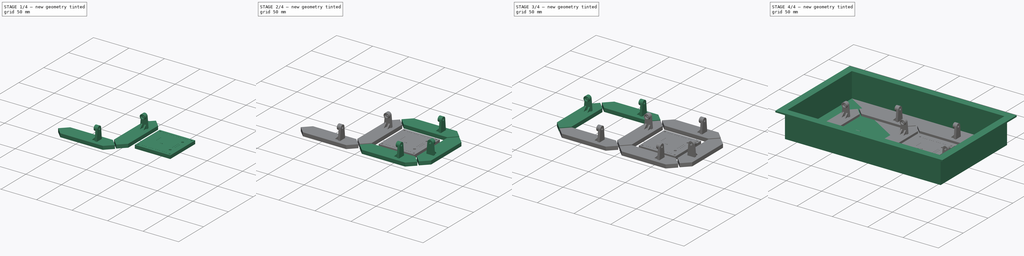
[diagram: build sequence overview — one tinted view per stage of 4, left to right]
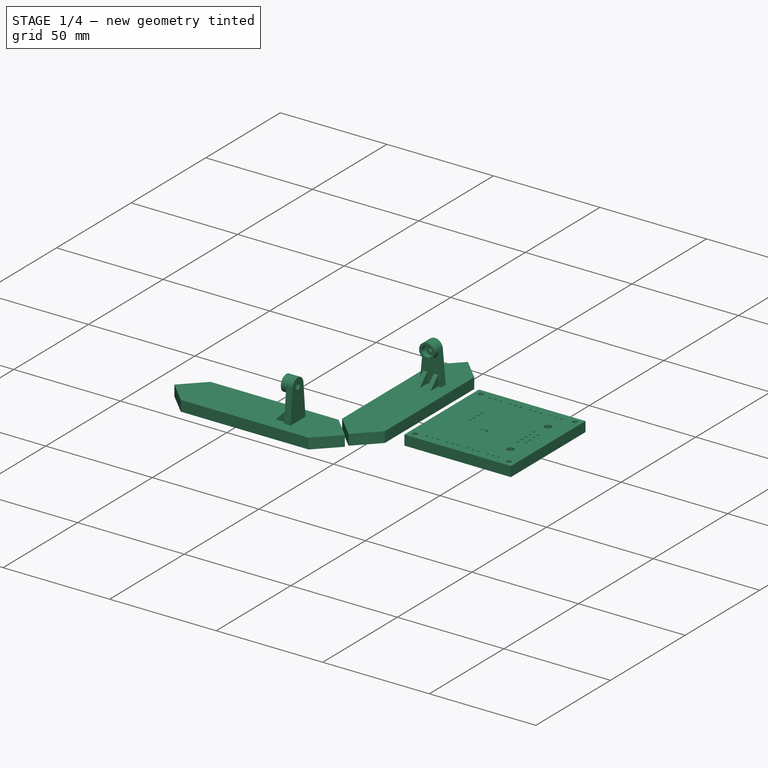
[diagram: stage 1 of 4 — iso view after this stage's code; geometry added in this stage tinted green]
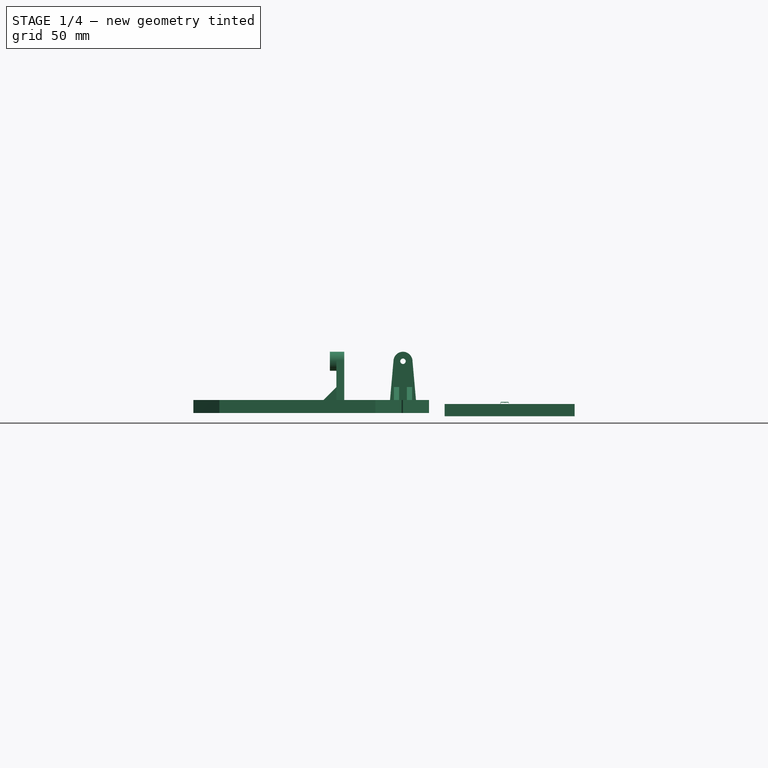
[diagram: stage 1 of 4 — front view after this stage's code; geometry added in this stage tinted green]
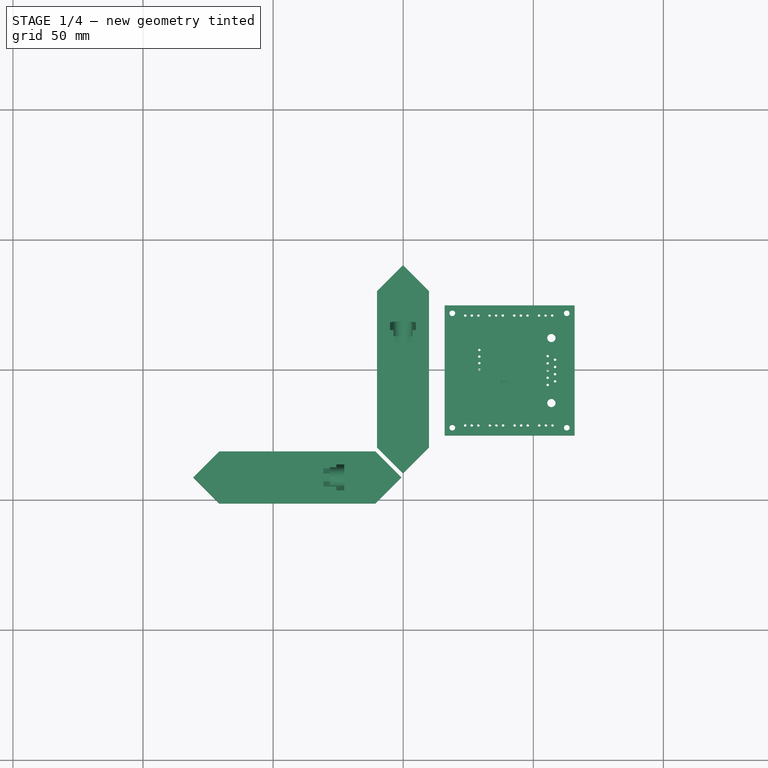
[diagram: stage 1 of 4 — top view after this stage's code; geometry added in this stage tinted green]
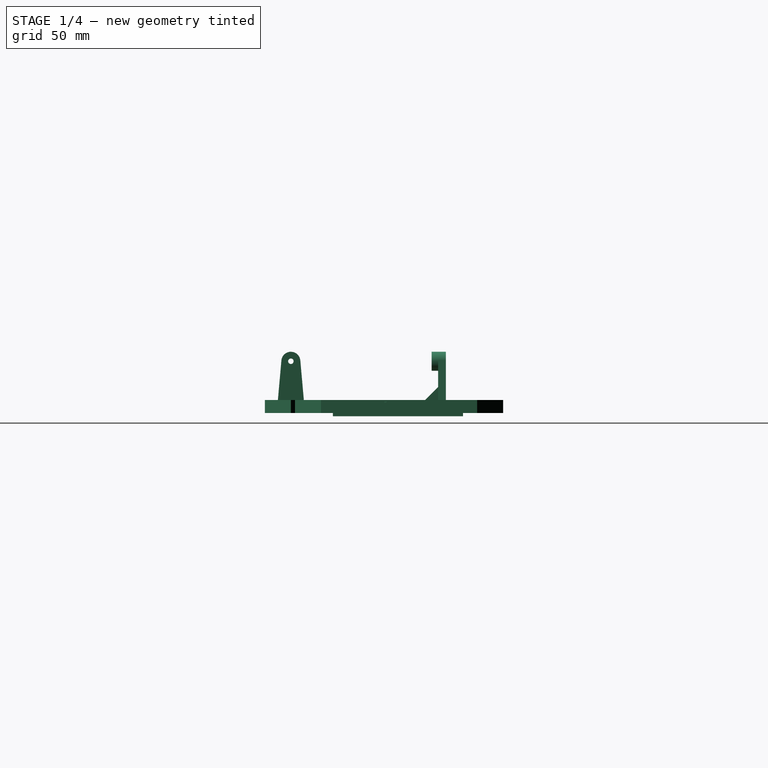
[diagram: stage 1 of 4 — right view after this stage's code; geometry added in this stage tinted green]
FCSTD DOCUMENT  (FreeCAD 0.20R29603 (Git))
Label: DisplayBox_1
License: All rights reserved
LicenseURL: http://en.wikipedia.org/wiki/All_rights_reserved
objects: Part::FeaturePython×8, Sketcher::SketchObject×4, PartDesign::Plane×3, PartDesign::Pad×2, PartDesign::Pocket×1, PartDesign::Body×1
note: 22 computed .brp shape members not serialized (recipe doc carries the construction recipe); baked Part::Feature solids carry a one-line shape summary decoded from their .brp

FEATURE [Part::FeaturePython] b_Segment_V2_001_005  label="Segment_V2_006"  # a2plus imported part (geometry in sourceFile) (typed FeaturePython)
  Placement = pos=(-40.6733,-41.3843,0) rot=(0,0,1;0rad)
  a2p_Version = 0.4.60i
  fixedPosition = false
  objectType = a2pPart
  sourceFile = ./Segment_V2.FCStd
  subassemblyImport = false
  timeLastImport = 1.67485e+09
  updateColors = true
FEATURE [Part::FeaturePython] b_Segment_V2_001_006  label="Segment_V2_007"  # a2plus imported part (geometry in sourceFile) (typed FeaturePython)
  Placement = pos=(-0.0824766,0.214149,0) rot=(0,0,1;1.5708rad)
  a2p_Version = 0.4.60i
  fixedPosition = false
  objectType = a2pPart
  sourceFile = ./Segment_V2.FCStd
  subassemblyImport = false
  timeLastImport = 1.67485e+09
  updateColors = true
FEATURE [Part::FeaturePython] b_DGT1_PCB_001_  label="DGT1_PCB_001"  # a2plus imported part (geometry in sourceFile) (typed FeaturePython)
  Placement = pos=(-49.1346,-150.221,-1.23001) rot=(0,0,1;1.5708rad)
  a2p_Version = 0.4.60i
  fixedPosition = false
  objectType = a2pPart
  sourceFile = ./../../KiCad/PLT-01/DGT-01/DGT1_PCB.FCStd
  subassemblyImport = false
  timeLastImport = 1.67491e+09
  updateColors = true
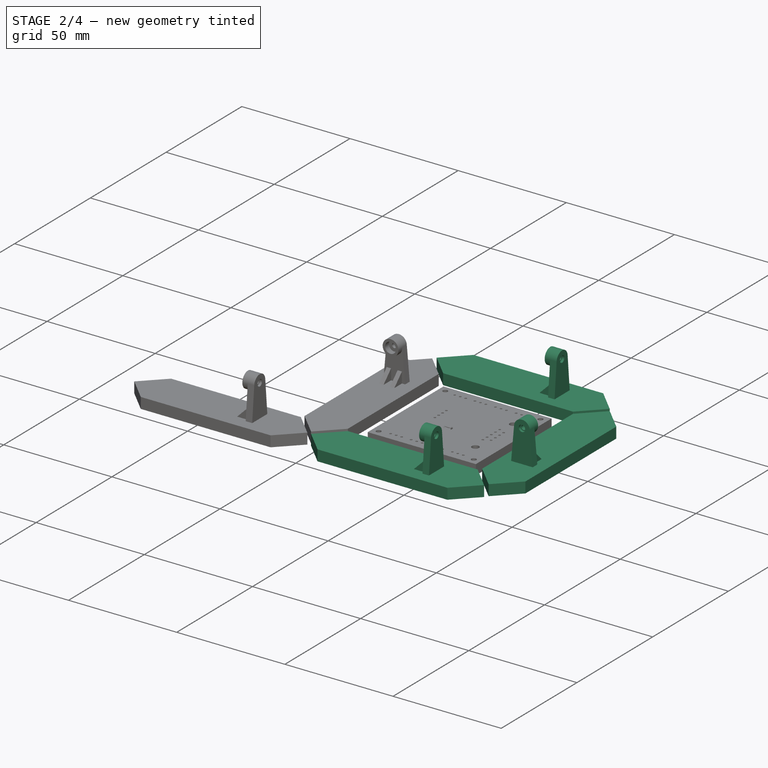
[diagram: stage 2 of 4 — iso view after this stage's code; geometry added in this stage tinted green]
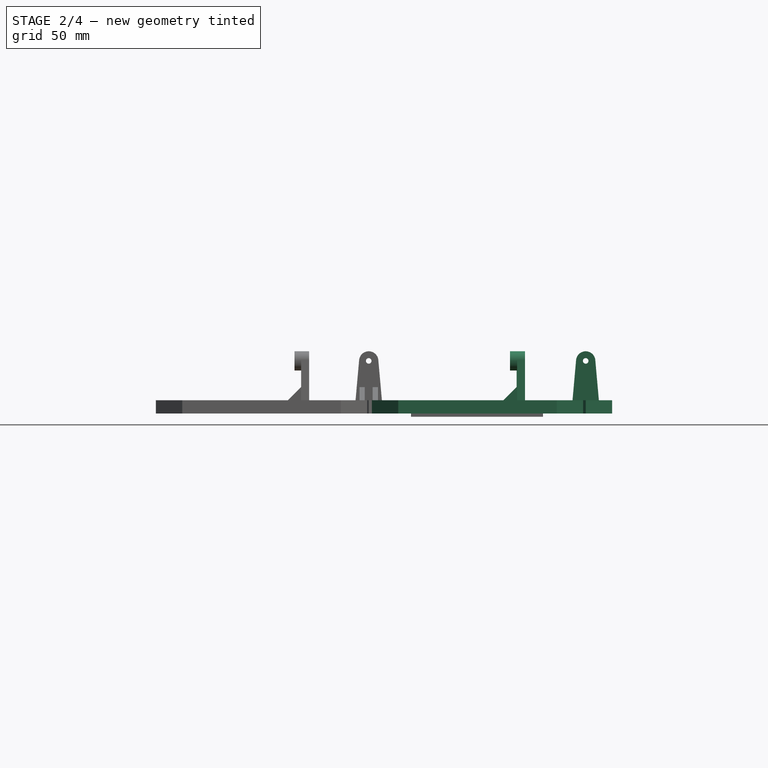
[diagram: stage 2 of 4 — front view after this stage's code; geometry added in this stage tinted green]
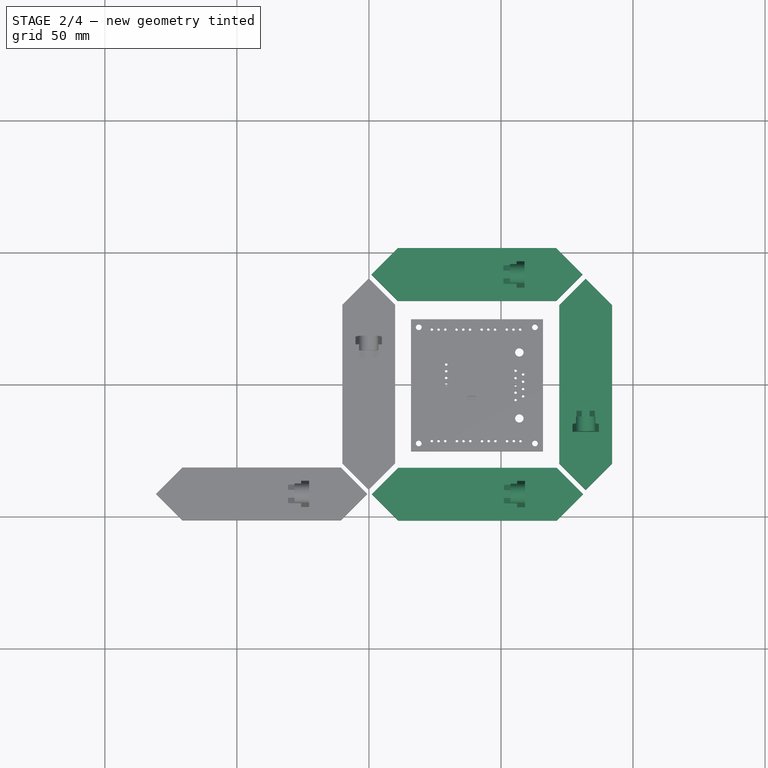
[diagram: stage 2 of 4 — top view after this stage's code; geometry added in this stage tinted green]
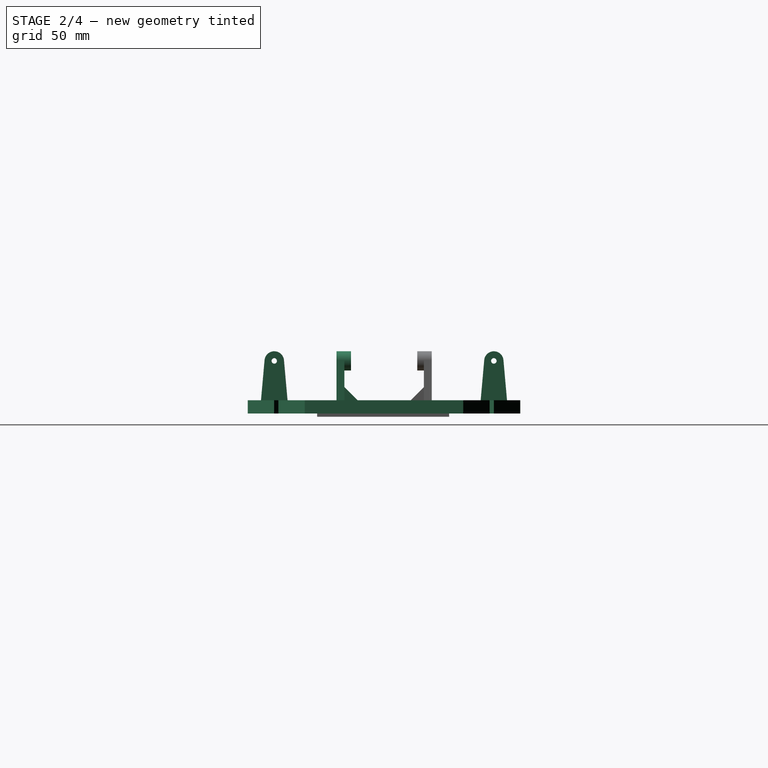
[diagram: stage 2 of 4 — right view after this stage's code; geometry added in this stage tinted green]
FEATURE [Part::FeaturePython] b_Segment_V2_001_002  label="Segment_V2_003"  # a2plus imported part (geometry in sourceFile) (typed FeaturePython)
  Placement = pos=(40.9175,41.7141,0) rot=(0,0,1;0rad)
  a2p_Version = 0.4.60i
  fixedPosition = false
  objectType = a2pPart
  sourceFile = ./Segment_V2.FCStd
  subassemblyImport = false
  timeLastImport = 1.67485e+09
  updateColors = true
FEATURE [Part::FeaturePython] b_Segment_V2_001_003  label="Segment_V2_004"  # a2plus imported part (geometry in sourceFile) (typed FeaturePython)
  Placement = pos=(82.0767,0.11572,0) rot=(0,0,-1;1.5708rad)
  a2p_Version = 0.4.60i
  fixedPosition = false
  objectType = a2pPart
  sourceFile = ./Segment_V2.FCStd
  subassemblyImport = false
  timeLastImport = 1.67485e+09
  updateColors = true
FEATURE [Part::FeaturePython] b_Segment_V2_001_004  label="Segment_V2_005"  # a2plus imported part (geometry in sourceFile) (typed FeaturePython)
  Placement = pos=(41.1031,-41.4715,0) rot=(0,0,1;0rad)
  a2p_Version = 0.4.60i
  fixedPosition = false
  objectType = a2pPart
  sourceFile = ./Segment_V2.FCStd
  subassemblyImport = false
  timeLastImport = 1.67485e+09
  updateColors = true
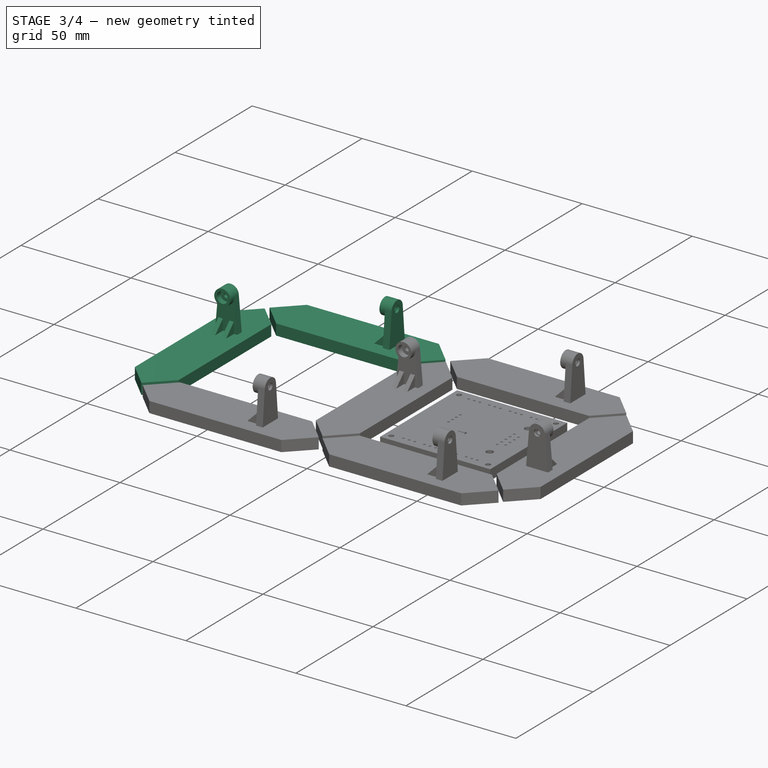
[diagram: stage 3 of 4 — iso view after this stage's code; geometry added in this stage tinted green]
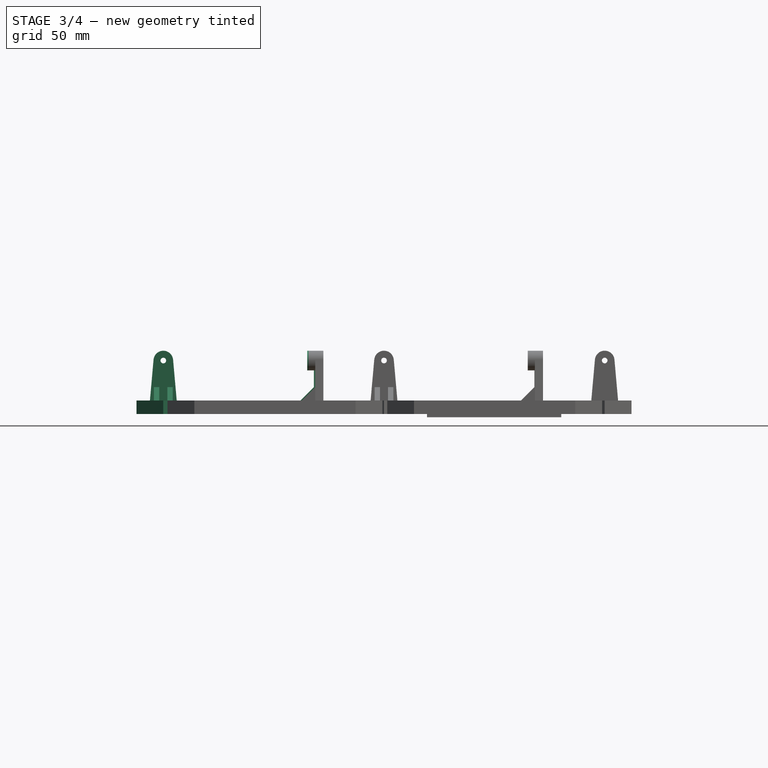
[diagram: stage 3 of 4 — front view after this stage's code; geometry added in this stage tinted green]
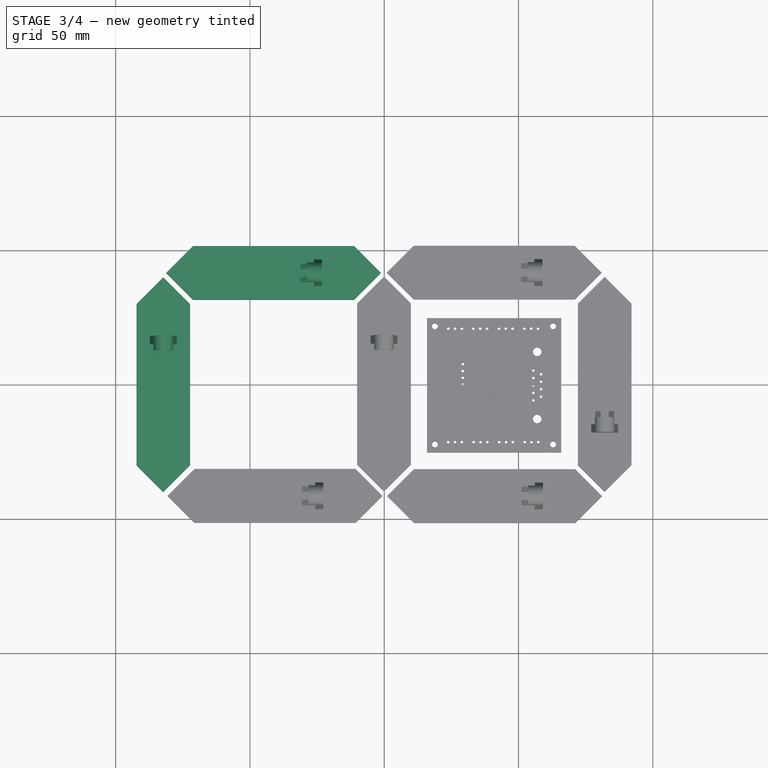
[diagram: stage 3 of 4 — top view after this stage's code; geometry added in this stage tinted green]
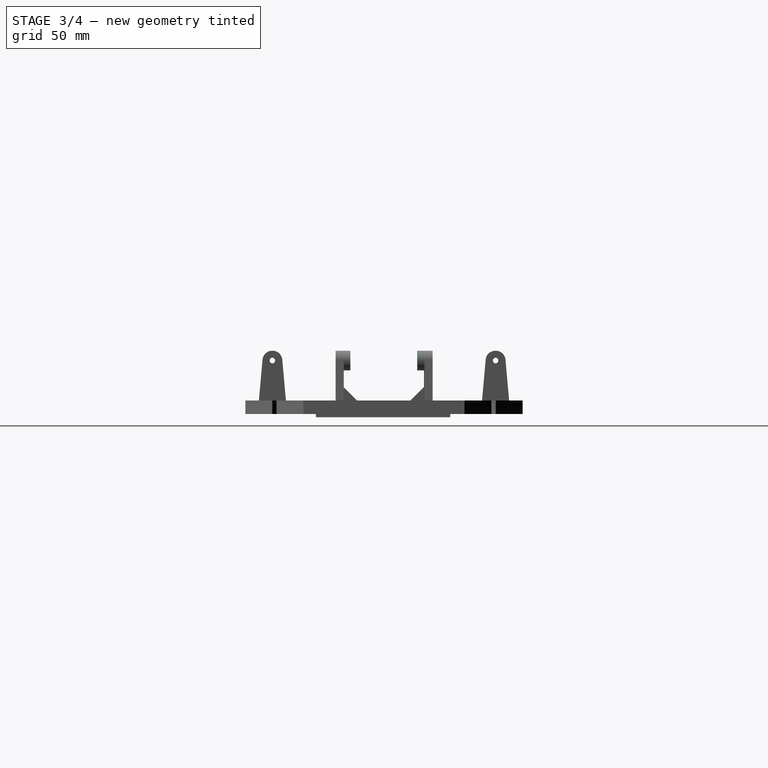
[diagram: stage 3 of 4 — right view after this stage's code; geometry added in this stage tinted green]
FEATURE [PartDesign::Plane] DatumPlane002  label="PlanoSuporteServos"
  Length = 273.63
  MapMode = 5
  Placement = pos=(0,0,2) rot=(0,0,1;0rad)
  ResizeMode = 0
  Support = -> [Pocket]
  Width = 187.63
FEATURE [Sketcher::SketchObject] Sketch003
  FullyConstrained = true
  MapMode = 5
  Placement = pos=(0,0,2) rot=(0,0,1;0rad)
  Support = -> [DatumPlane002]
FEATURE [PartDesign::Body] Body
  Group = -> [Sketch,Pad,DatumPlane,Sketch001,Pad001,DatumPlane001,Sketch002,Pocket,DatumPlane002,Sketch003]
  Origin = -> Origin
  Tip = -> Pocket
FEATURE [Part::FeaturePython] b_Segment_V2_001_  label="Segment_V2_001"  # a2plus imported part (geometry in sourceFile) (typed FeaturePython)
  Placement = pos=(-82.25,-5e-15,0) rot=(0,0,1;1.5708rad)
  a2p_Version = 0.4.60i
  fixedPosition = true
  objectType = a2pPart
  sourceFile = ./Segment_V2.FCStd
  subassemblyImport = false
  timeLastImport = 1.67485e+09
  updateColors = true
FEATURE [Part::FeaturePython] b_Segment_V2_001_001  label="Segment_V2_002"  # a2plus imported part (geometry in sourceFile) (typed FeaturePython)
  Placement = pos=(-41.1733,41.6157,0) rot=(0,0,1;0rad)
  a2p_Version = 0.4.60i
  fixedPosition = false
  objectType = a2pPart
  sourceFile = ./Segment_V2.FCStd
  subassemblyImport = false
  timeLastImport = 1.67485e+09
  updateColors = true
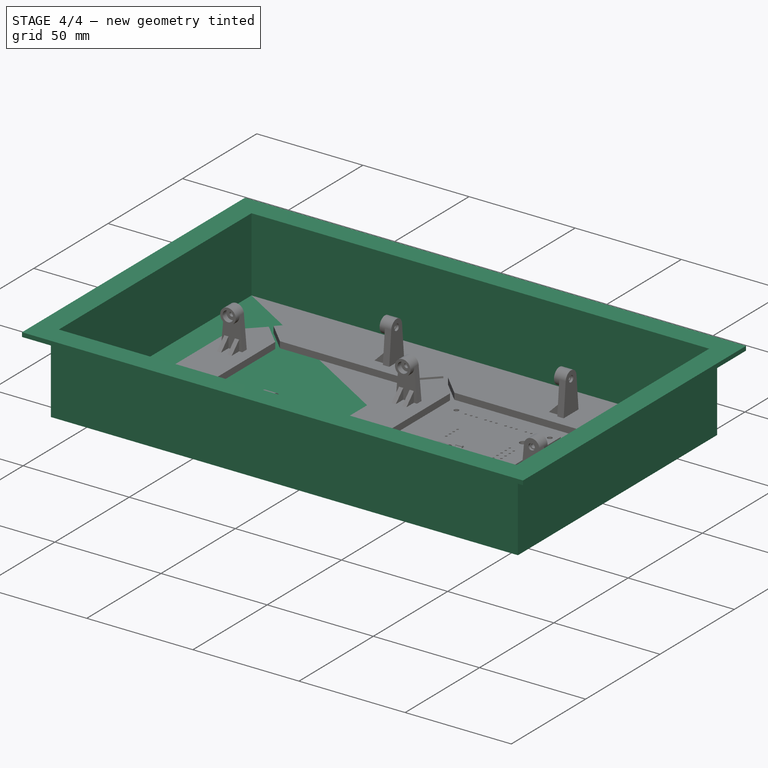
[diagram: stage 4 of 4 — iso view after this stage's code; geometry added in this stage tinted green]
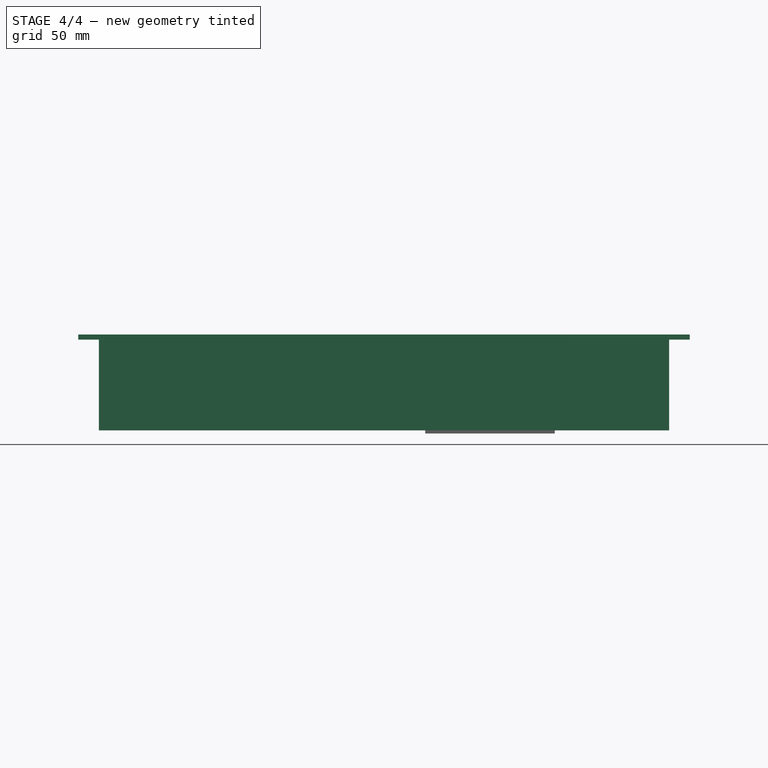
[diagram: stage 4 of 4 — front view after this stage's code; geometry added in this stage tinted green]
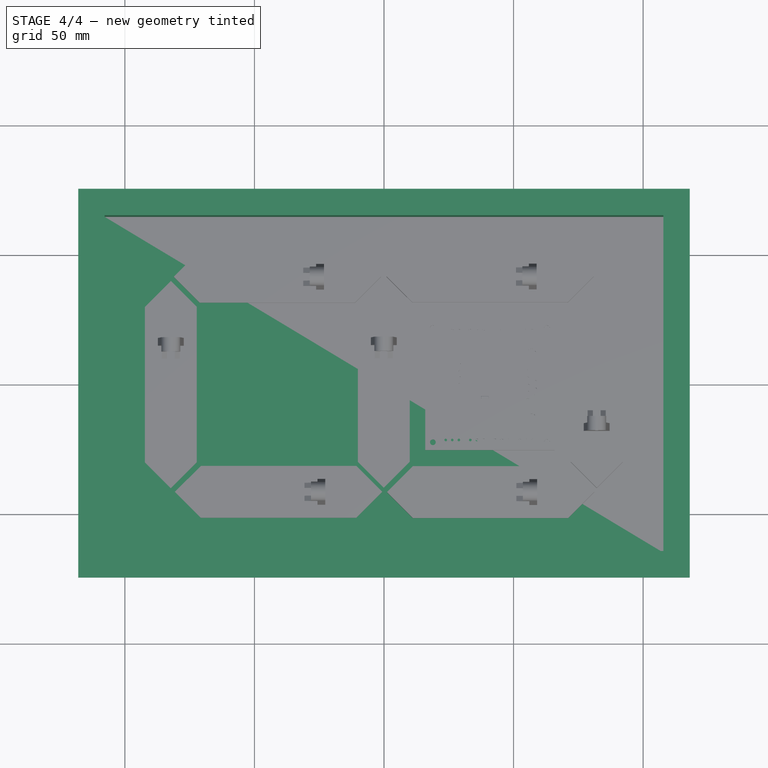
[diagram: stage 4 of 4 — top view after this stage's code; geometry added in this stage tinted green]
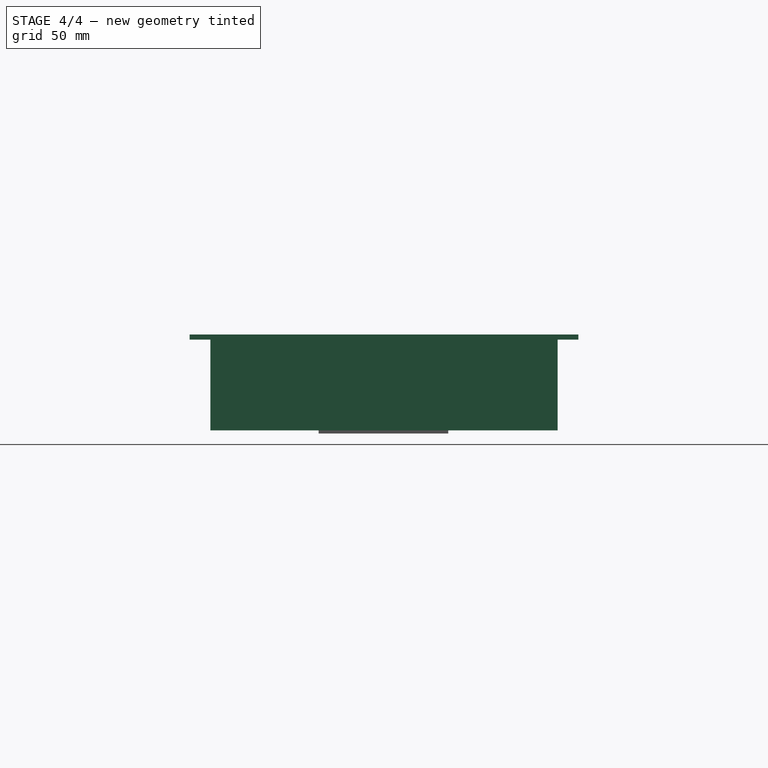
[diagram: stage 4 of 4 — right view after this stage's code; geometry added in this stage tinted green]
FEATURE [Sketcher::SketchObject] Sketch
  FullyConstrained = true
  MapMode = 5
  Support = -> [XY_Plane]
  sketch-geometry (4):
    g0: LineSegment StartX=-110 StartY=67 StartZ=0 EndX=110 EndY=67 EndZ=0
    g1: LineSegment StartX=110 StartY=67 StartZ=0 EndX=110 EndY=-67 EndZ=0
    g2: LineSegment StartX=110 StartY=-67 StartZ=0 EndX=-110 EndY=-67 EndZ=0
    g3: LineSegment StartX=-110 StartY=-67 StartZ=0 EndX=-110 EndY=67 EndZ=0
  constraints (10):
    c: Coincident(g0,g1)
    c: Coincident(g1,g2)
    c: Coincident(g2,g3)
    c: Coincident(g3,g0)
    c: Horizontal(g2)
    c: Vertical(g1)
    c: Symmetric(g0,g2,g-1)
    c: Symmetric(g0,g0,g-2)
    c: DistanceX(g0,g0) = 220
    c: DistanceY(g1,g0) = 134
FEATURE [PartDesign::Pad] Pad  label="CorpoExterno"
  Direction = (0,0,1)
  Length = 35
  Length2 = 10
  Profile = -> Sketch
  ReferenceAxis = -> Sketch [N_Axis]
  Type = 0
FEATURE [PartDesign::Plane] DatumPlane  label="PlanoAba"
  Length = 273.63
  MapMode = 5
  Placement = pos=(0,0,35) rot=(0,0,1;0rad)
  ResizeMode = 0
  Support = -> [Pad]
  Width = 187.63
FEATURE [Sketcher::SketchObject] Sketch001
  FullyConstrained = true
  MapMode = 5
  Placement = pos=(0,0,35) rot=(0,0,1;0rad)
  Support = -> [DatumPlane]
  sketch-geometry (4):
    g0: LineSegment StartX=-118 StartY=75 StartZ=0 EndX=118 EndY=75 EndZ=0
    g1: LineSegment StartX=118 StartY=75 StartZ=0 EndX=118 EndY=-75 EndZ=0
    g2: LineSegment StartX=118 StartY=-75 StartZ=0 EndX=-118 EndY=-75 EndZ=0
    g3: LineSegment StartX=-118 StartY=-75 StartZ=0 EndX=-118 EndY=75 EndZ=0
  constraints (10):
    c: Coincident(g0,g1)
    c: Coincident(g1,g2)
    c: Coincident(g2,g3)
    c: Coincident(g3,g0)
    c: Horizontal(g2)
    c: Vertical(g1)
    c: Symmetric(g0,g2,g-1)
    c: Symmetric(g0,g0,g-2)
    c: DistanceY(g2,g0) = 150
    c: DistanceX(g0,g0) = 236
FEATURE [PartDesign::Pad] Pad001  label="Aba"
  BaseFeature = -> Pad
  Direction = (0,0,1)
  Length = 2
  Length2 = 10
  Profile = -> Sketch001
  ReferenceAxis = -> Sketch001 [N_Axis]
  Type = 0
FEATURE [PartDesign::Plane] DatumPlane001  label="PlanoCorpoInterno"
  Length = 273.63
  MapMode = 5
  Placement = pos=(0,0,37) rot=(0,0,1;0rad)
  ResizeMode = 0
  Support = -> [Pad001]
  Width = 187.63
FEATURE [Sketcher::SketchObject] Sketch002
  FullyConstrained = true
  MapMode = 5
  Placement = pos=(0,0,37) rot=(0,0,1;0rad)
  Support = -> [DatumPlane001]
  sketch-geometry (4):
    g0: LineSegment StartX=-107.8 StartY=64.8 StartZ=0 EndX=107.8 EndY=64.8 EndZ=0
    g1: LineSegment StartX=107.8 StartY=64.8 StartZ=0 EndX=107.8 EndY=-64.8 EndZ=0
    g2: LineSegment StartX=107.8 StartY=-64.8 StartZ=0 EndX=-107.8 EndY=-64.8 EndZ=0
    g3: LineSegment StartX=-107.8 StartY=-64.8 StartZ=0 EndX=-107.8 EndY=64.8 EndZ=0
  constraints (10):
    c: Coincident(g0,g1)
    c: Coincident(g1,g2)
    c: Coincident(g2,g3)
    c: Coincident(g3,g0)
    c: Horizontal(g2)
    c: Vertical(g1)
    c: Symmetric(g0,g2,g-1)
    c: Symmetric(g0,g0,g-2)
    c: DistanceY(g2,g0) = 129.6
    c: DistanceX(g0,g0) = 215.6
FEATURE [PartDesign::Pocket] Pocket  label="CorpoInterno"
  BaseFeature = -> Pad001
  Direction = (0,0,-1)
  Length = 35
  Length2 = 5
  Profile = -> Sketch002
  ReferenceAxis = -> Sketch002 [N_Axis]
  Type = 0
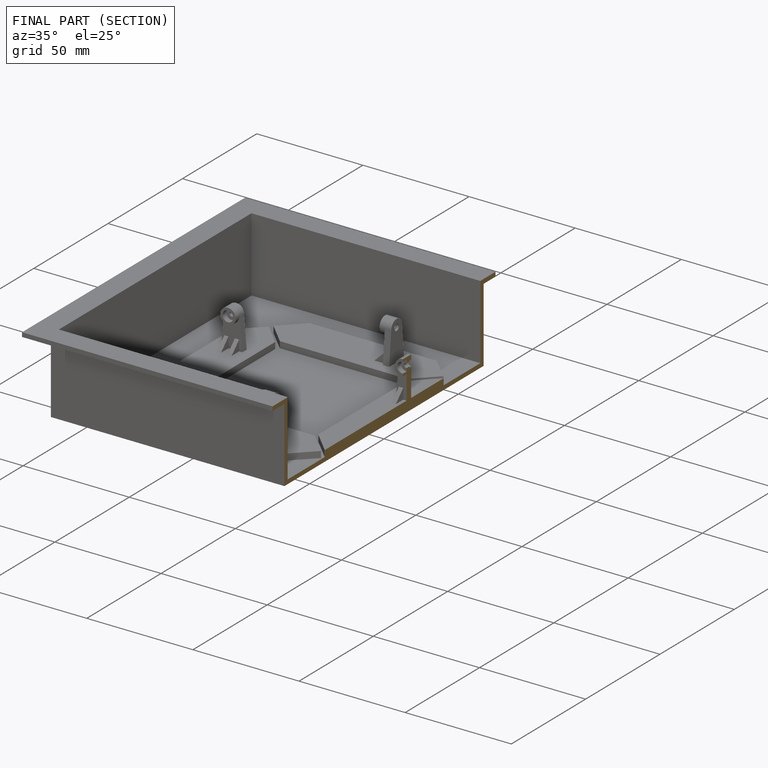
[diagram: finished part — half-section view (interior)]
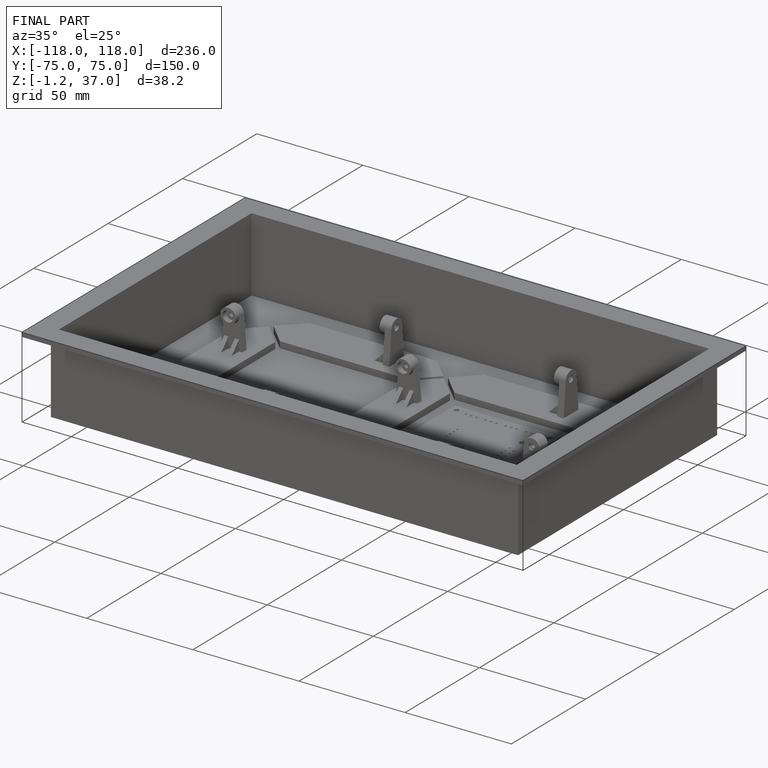
[diagram: finished part — iso view with bounding-box wireframe]
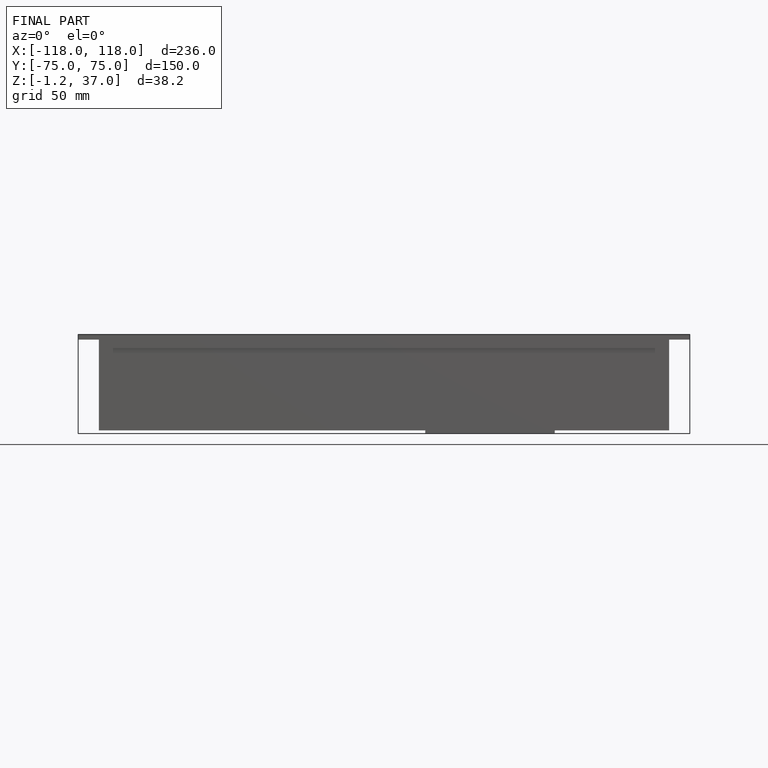
[diagram: finished part — front view with bounding-box wireframe]
